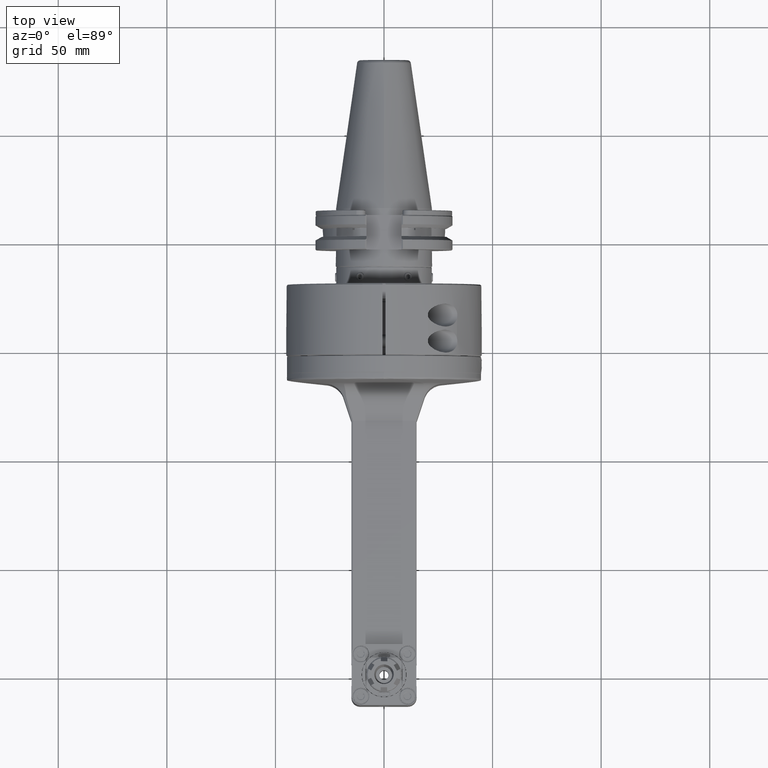
[diagram: clean part render]
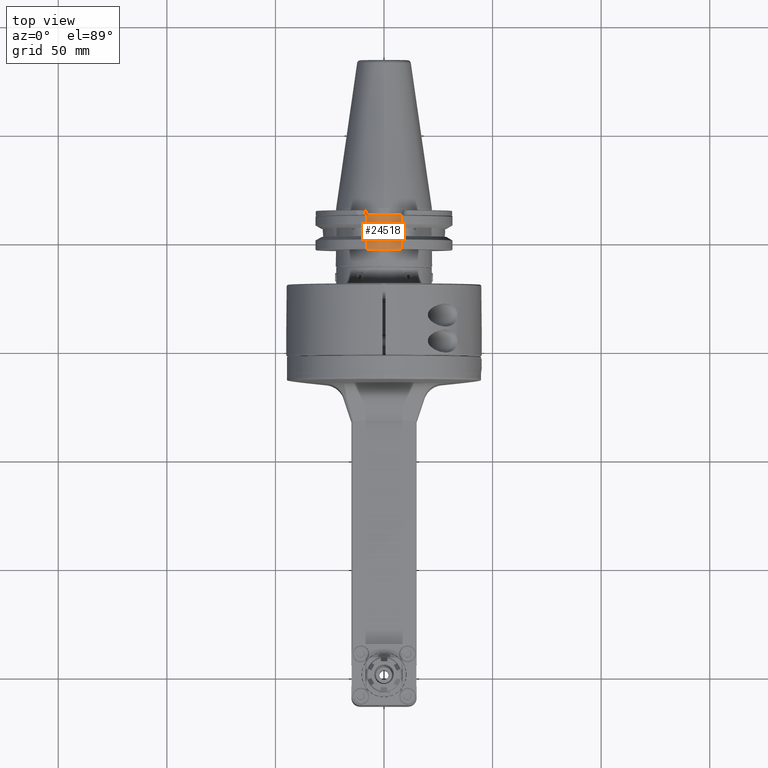
[diagram: same view with one face highlighted and labeled with its STEP entity id]
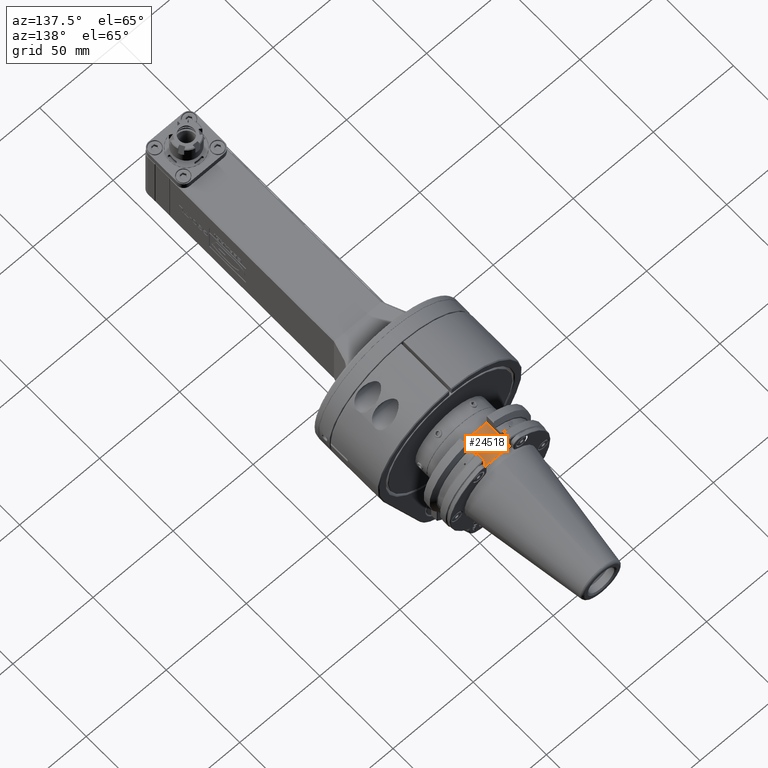
[diagram: same view with one face highlighted and labeled with its STEP entity id]
A machine part, top view. The second image highlights one B-rep face of the part: STEP entity #24518.
A second angle (auxiliary view) of the same face is appended — the face is thin or edge-on in the first view.
In plain terms, the highlighted planar face has unit normal (0, 0, -1).
Its self-contained STEP definition (entity closure, byte-faithful):
#2554=LINE('',#44947,#4683);
#2573=LINE('',#45044,#4702);
#2574=LINE('',#45047,#4703);
#2575=LINE('',#45048,#4704);
#4683=VECTOR('',#32918,16.1);
#4702=VECTOR('',#32979,15.9);
#4703=VECTOR('',#32982,16.1);
#4704=VECTOR('',#32983,15.9);
#6578=FACE_OUTER_BOUND('',#8113,.T.);
#8113=EDGE_LOOP('',(#21176,#21177,#21178,#21179));
#11359=VERTEX_POINT('',#44944);
#11360=VERTEX_POINT('',#44946);
#11396=VERTEX_POINT('',#45042);
#11397=VERTEX_POINT('',#45046);
#14684=EDGE_CURVE('',#11360,#11359,#2554,.T.);
#14725=EDGE_CURVE('',#11359,#11396,#2573,.T.);
#14726=EDGE_CURVE('',#11397,#11396,#2574,.T.);
#14727=EDGE_CURVE('',#11360,#11397,#2575,.T.);
#21176=ORIENTED_EDGE('',*,*,#14726,.F.);
#21177=ORIENTED_EDGE('',*,*,#14727,.F.);
#21178=ORIENTED_EDGE('',*,*,#14684,.T.);
#21179=ORIENTED_EDGE('',*,*,#14725,.T.);
#23265=PLANE('',#26785);
#24518=ADVANCED_FACE('',(#6578),#23265,.F.);
#26785=AXIS2_PLACEMENT_3D('',#45045,#32980,#32981);
#32918=DIRECTION('',(-1.,0.,0.));
#32979=DIRECTION('',(0.,-1.,0.));
#32980=DIRECTION('center_axis',(0.,0.,-1.));
#32981=DIRECTION('ref_axis',(-1.,0.,0.));
#32982=DIRECTION('',(-1.,0.,0.));
#32983=DIRECTION('',(0.,-1.,0.));
#44944=CARTESIAN_POINT('',(-8.05,211.8,22.8));
#44946=CARTESIAN_POINT('',(8.05,211.8,22.8));
#44947=CARTESIAN_POINT('',(8.05,211.8,22.8));
#45042=CARTESIAN_POINT('',(-8.05,195.9,22.8));
#45044=CARTESIAN_POINT('',(-8.05,211.8,22.8));
#45045=CARTESIAN_POINT('Origin',(8.05,211.8,22.8));
#45046=CARTESIAN_POINT('',(8.05,195.9,22.8));
#45047=CARTESIAN_POINT('',(8.05,195.9,22.8));
#45048=CARTESIAN_POINT('',(8.05,211.8,22.8));